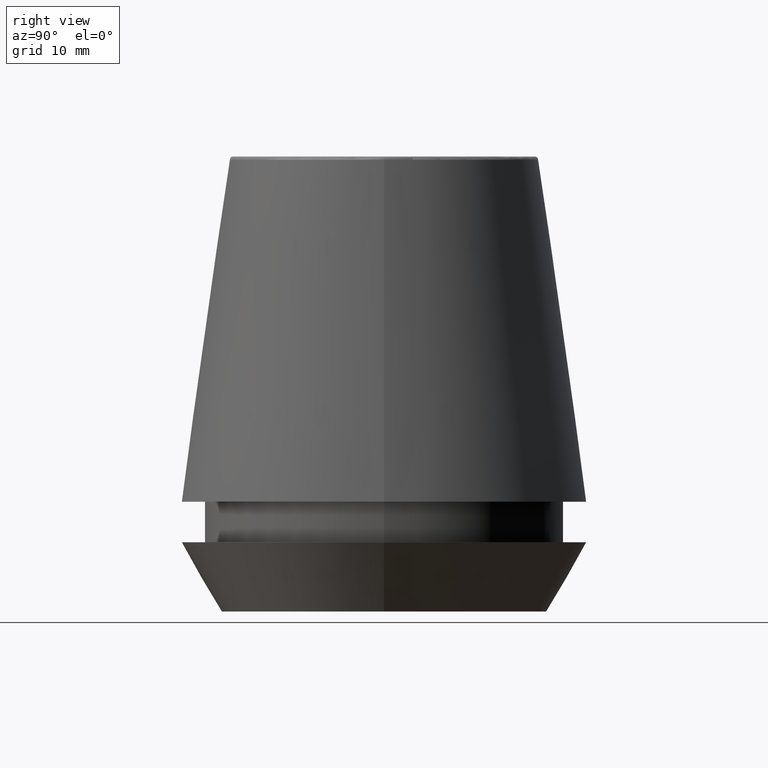
[diagram: clean part render]
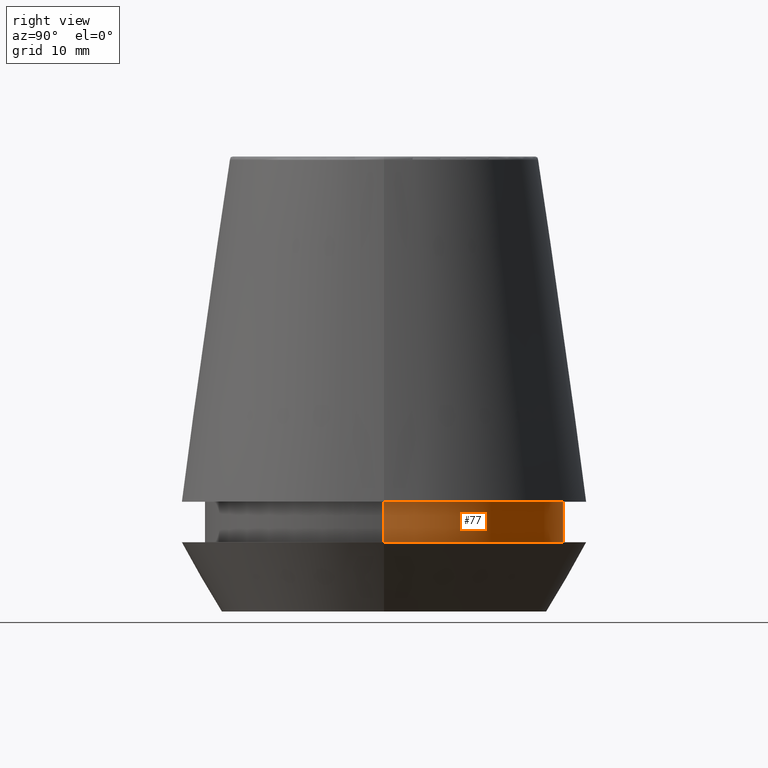
[diagram: same view with one face highlighted and labeled with its STEP entity id]
A machine part, right view. The second image highlights one B-rep face of the part: STEP entity #77.
In plain terms, the highlighted cylindrical surface (partial cylindrical patch) has radius 18.1 mm, axis along (-0, -0, 1).
Its self-contained STEP definition (entity closure, byte-faithful):
#1 = DIRECTION ( 'NONE',  ( 1.000000000000000000, 0.0000000000000000000, 0.0000000000000000000 ) ) ;
#2 = CARTESIAN_POINT ( 'NONE',  ( 18.10000000000000500, 0.0000000000000000000, 46.00000000000000000 ) ) ;
#10 = ORIENTED_EDGE ( 'NONE', *, *, #217, .T. ) ;
#18 = CARTESIAN_POINT ( 'NONE',  ( 18.10000000000000500, 0.0000000000000000000, 11.09999999999999800 ) ) ;
#29 = EDGE_CURVE ( 'NONE', #207, #149, #353, .T. ) ;
#40 = DIRECTION ( 'NONE',  ( -0.0000000000000000000, -0.0000000000000000000, 1.000000000000000000 ) ) ;
#66 = DIRECTION ( 'NONE',  ( -0.0000000000000000000, -0.0000000000000000000, 1.000000000000000000 ) ) ;
#77 = ADVANCED_FACE ( 'NONE', ( #315 ), #300, .T. ) ;
#108 = DIRECTION ( 'NONE',  ( -0.0000000000000000000, -0.0000000000000000000, 1.000000000000000000 ) ) ;
#114 = CARTESIAN_POINT ( 'NONE',  ( 0.0000000000000000000, 0.0000000000000000000, 6.999999999999999100 ) ) ;
#126 = CARTESIAN_POINT ( 'NONE',  ( -18.10000000000000100, 2.216610706456709600E-015, 6.999999999999999100 ) ) ;
#149 = VERTEX_POINT ( 'NONE', #126 ) ;
#150 = EDGE_LOOP ( 'NONE', ( #204, #10, #188, #221 ) ) ;
#151 = VERTEX_POINT ( 'NONE', #18 ) ;
#163 = DIRECTION ( 'NONE',  ( 1.000000000000000000, 0.0000000000000000000, 0.0000000000000000000 ) ) ;
#182 = CARTESIAN_POINT ( 'NONE',  ( 18.10000000000000100, 0.0000000000000000000, 6.999999999999999100 ) ) ;
#186 = AXIS2_PLACEMENT_3D ( 'NONE', #189, #108, #163 ) ;
#188 = ORIENTED_EDGE ( 'NONE', *, *, #258, .F. ) ;
#189 = CARTESIAN_POINT ( 'NONE',  ( 0.0000000000000000000, 0.0000000000000000000, 46.00000000000000000 ) ) ;
#204 = ORIENTED_EDGE ( 'NONE', *, *, #29, .T. ) ;
#207 = VERTEX_POINT ( 'NONE', #182 ) ;
#214 = CARTESIAN_POINT ( 'NONE',  ( -18.10000000000000500, 2.216610706456710000E-015, 46.00000000000000000 ) ) ;
#217 = EDGE_CURVE ( 'NONE', #149, #350, #229, .T. ) ;
#221 = ORIENTED_EDGE ( 'NONE', *, *, #243, .F. ) ;
#229 = LINE ( 'NONE', #214, #260 ) ;
#243 = EDGE_CURVE ( 'NONE', #207, #151, #254, .T. ) ;
#247 = VECTOR ( 'NONE', #66, 1000.000000000000000 ) ;
#254 = LINE ( 'NONE', #2, #247 ) ;
#258 = EDGE_CURVE ( 'NONE', #151, #350, #269, .T. ) ;
#260 = VECTOR ( 'NONE', #40, 1000.000000000000000 ) ;
#269 = CIRCLE ( 'NONE', #357, 18.10000000000000500 ) ;
#280 = CARTESIAN_POINT ( 'NONE',  ( -18.10000000000000500, 2.216610706456710000E-015, 11.09999999999999800 ) ) ;
#293 = CARTESIAN_POINT ( 'NONE',  ( 0.0000000000000000000, 0.0000000000000000000, 11.09999999999999800 ) ) ;
#300 = CYLINDRICAL_SURFACE ( 'NONE', #186, 18.10000000000000500 ) ;
#315 = FACE_OUTER_BOUND ( 'NONE', #150, .T. ) ;
#333 = DIRECTION ( 'NONE',  ( 1.000000000000000000, 0.0000000000000000000, 0.0000000000000000000 ) ) ;
#343 = AXIS2_PLACEMENT_3D ( 'NONE', #114, #344, #1 ) ;
#344 = DIRECTION ( 'NONE',  ( -0.0000000000000000000, -0.0000000000000000000, 1.000000000000000000 ) ) ;
#350 = VERTEX_POINT ( 'NONE', #280 ) ;
#353 = CIRCLE ( 'NONE', #343, 18.10000000000000100 ) ;
#357 = AXIS2_PLACEMENT_3D ( 'NONE', #293, #358, #333 ) ;
#358 = DIRECTION ( 'NONE',  ( -0.0000000000000000000, -0.0000000000000000000, 1.000000000000000000 ) ) ;